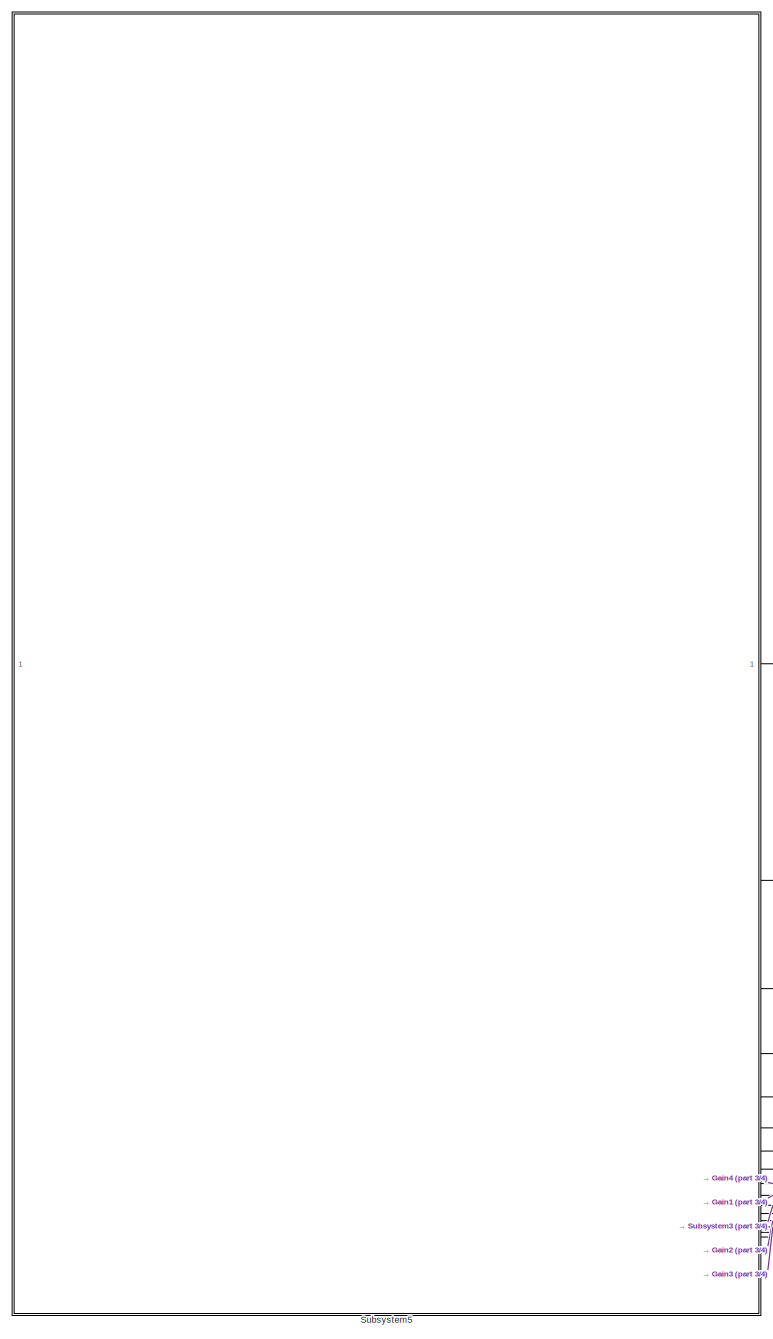
[diagram: root canvas - part 1/4, left side, full height]
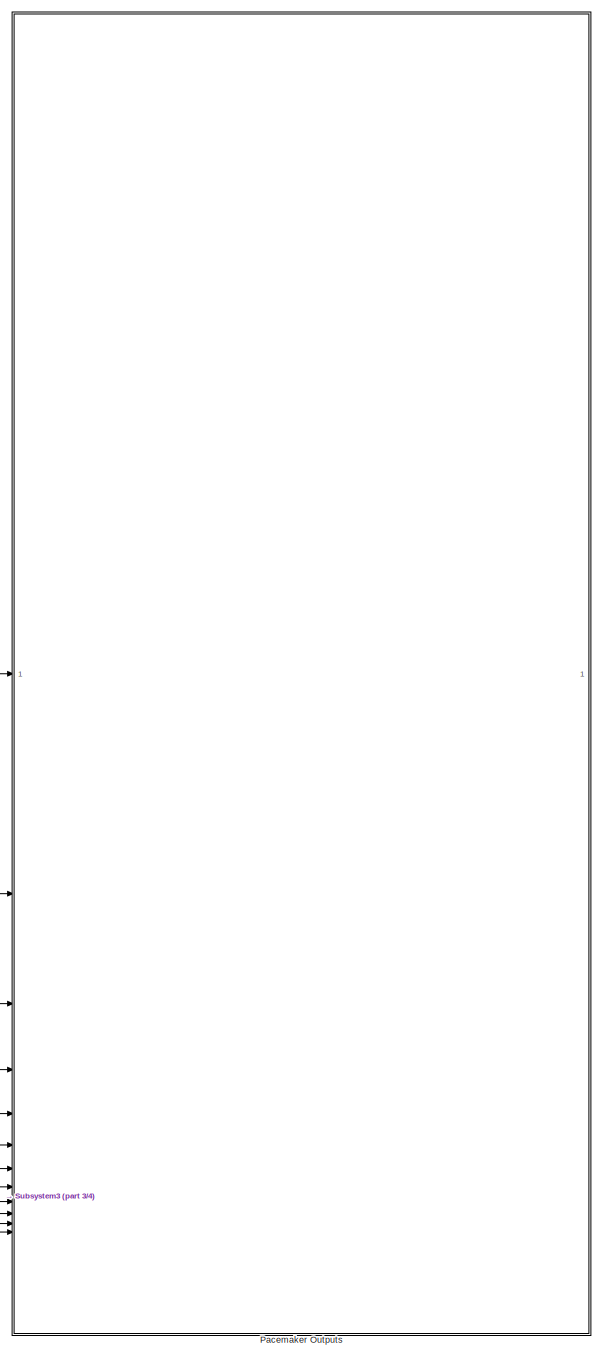
[diagram: root canvas - part 2/4, right side, full height]
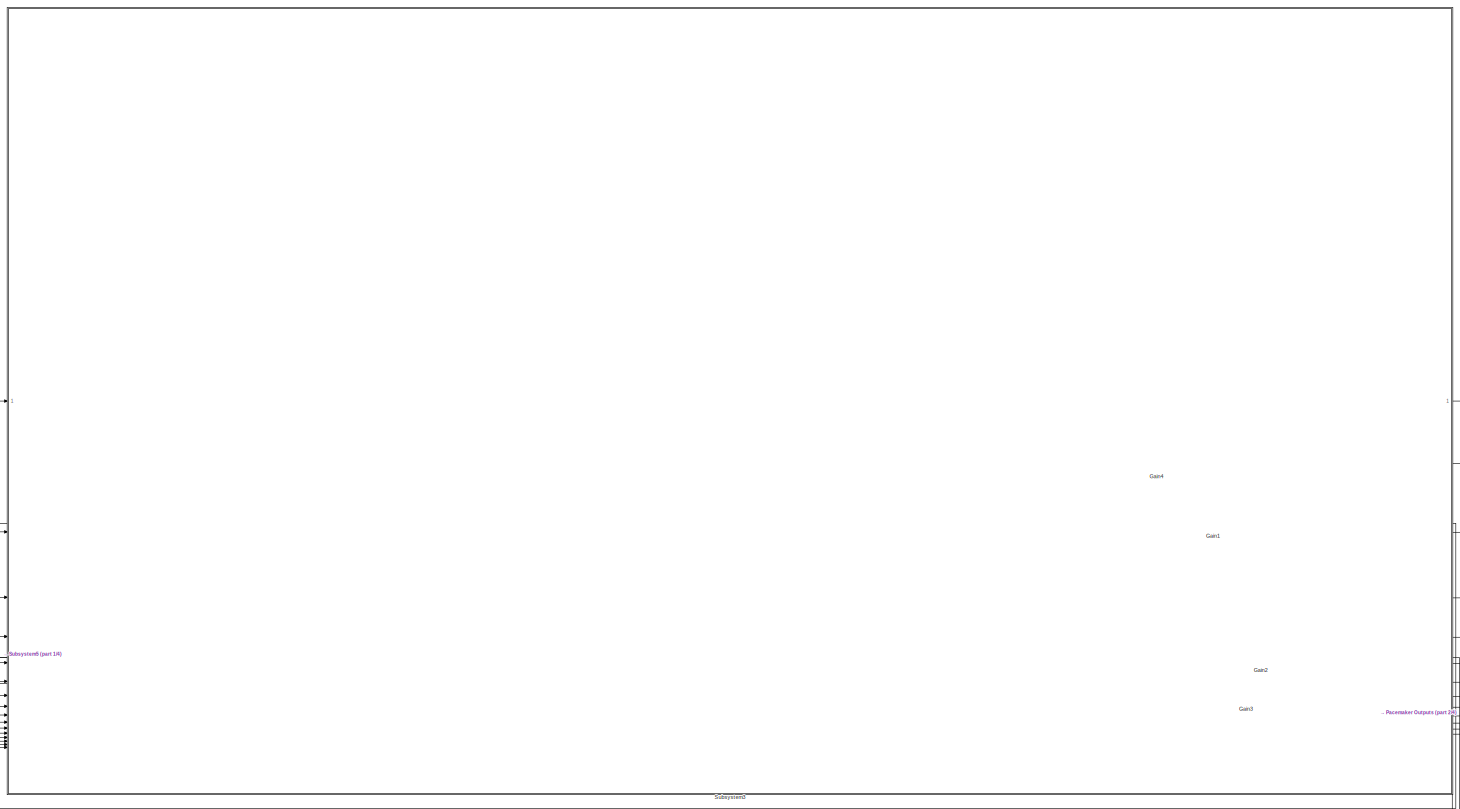
[diagram: root canvas - part 3/4, center side, full height]
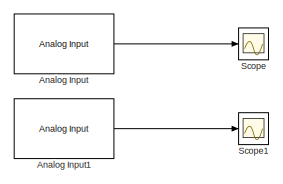
[diagram: root canvas - part 4/4, bottom left region]
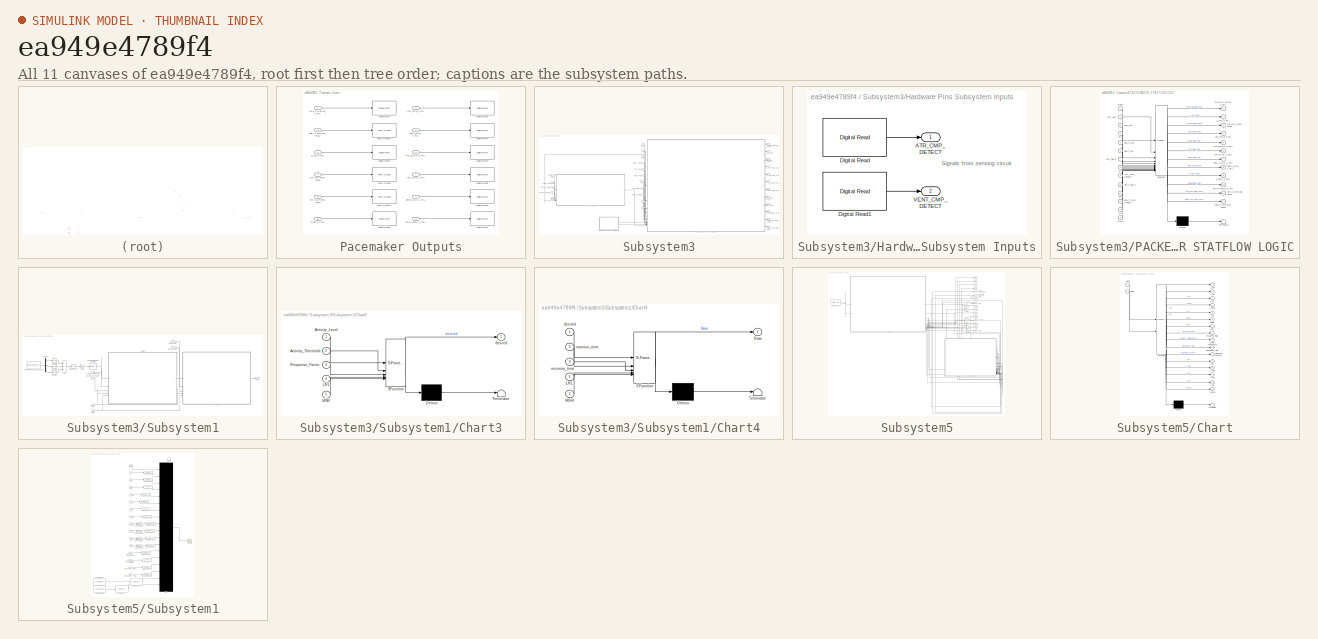
[diagram: thumbnail index - all 11 canvases of the model, root first then tree order]
MODEL slx_ea949e4789f4
KIND model
CONFIG AbsTol = auto
CONFIG EnableMultiTasking = on
CONFIG FixedStep = 1e-3
CONFIG MaxStep = auto
CONFIG MinStep = auto
CONFIG RelTol = 1e-3
CONFIG SampleTimeConstraint = Unconstrained
CONFIG SolverName = FixedStepAuto
CONFIG StartTime = 0.0
CONFIG StopTime = 10
BLOCK [Reference] Analog Input  REF=frdmk64flib/Analog Input
  SourceBlock = frdmk64flib/Analog Input
  SourceType = freedomk64f.AnalogInput
BLOCK [Reference] Analog Input1  REF=frdmk64flib/Analog Input
  SourceBlock = frdmk64flib/Analog Input
  SourceType = freedomk64f.AnalogInput
BLOCK [Gain] Gain1
  Gain = 20
BLOCK [Gain] Gain2
  Gain = 30
BLOCK [Gain] Gain3
  Gain = 30
BLOCK [Gain] Gain4
  Gain = 20
BLOCK [SubSystem] Pacemaker Outputs
BLOCK [Inport] Pacemaker Outputs/ATR_CMP_REF_PWM
  Port = 12
BLOCK [Inport] Pacemaker Outputs/ATR_GND_CTRL
  Port = 7
BLOCK [Inport] Pacemaker Outputs/ATR_PACE_CTRL
  Port = 4
BLOCK [Reference] Pacemaker Outputs/Digital Write  REF=frdmk64flib/Digital Write
  SourceBlock = frdmk64flib/Digital Write
  SourceType = freedomk64f.DigitalWrite
BLOCK [Reference] Pacemaker Outputs/Digital Write1  REF=frdmk64flib/Digital Write
  SourceBlock = frdmk64flib/Digital Write
  SourceType = freedomk64f.DigitalWrite
BLOCK [Reference] Pacemaker Outputs/Digital Write2  REF=frdmk64flib/Digital Write
  SourceBlock = frdmk64flib/Digital Write
  SourceType = freedomk64f.DigitalWrite
BLOCK [Reference] Pacemaker Outputs/Digital Write3  REF=frdmk64flib/Digital Write
  SourceBlock = frdmk64flib/Digital Write
  SourceType = freedomk64f.DigitalWrite
BLOCK [Reference] Pacemaker Outputs/Digital Write4  REF=frdmk64flib/Digital Write
  SourceBlock = frdmk64flib/Digital Write
  SourceType = freedomk64f.DigitalWrite
BLOCK [Reference] Pacemaker Outputs/Digital Write5  REF=frdmk64flib/Digital Write
  SourceBlock = frdmk64flib/Digital Write
  SourceType = freedomk64f.DigitalWrite
BLOCK [Reference] Pacemaker Outputs/Digital Write6  REF=frdmk64flib/Digital Write
  SourceBlock = frdmk64flib/Digital Write
  SourceType = freedomk64f.DigitalWrite
BLOCK [Reference] Pacemaker Outputs/Digital Write7  REF=frdmk64flib/Digital Write
  SourceBlock = frdmk64flib/Digital Write
  SourceType = freedomk64f.DigitalWrite
BLOCK [Reference] Pacemaker Outputs/Digital Write8  REF=frdmk64flib/Digital Write
  SourceBlock = frdmk64flib/Digital Write
  SourceType = freedomk64f.DigitalWrite
BLOCK [Inport] Pacemaker Outputs/FRONTEND_CTRL
  Port = 11
BLOCK [Inport] Pacemaker Outputs/PACE_CHARGE_CTRL
BLOCK [Inport] Pacemaker Outputs/PACE_GND_CTRL
  Port = 6
BLOCK [Inport] Pacemaker Outputs/PACING_REF_PWM
  Port = 3
BLOCK [Reference] Pacemaker Outputs/PWM Output  REF=frdmk64flib/PWM Output
  SourceBlock = frdmk64flib/PWM Output
  SourceType = freedomk64f.PWMOutput
BLOCK [Reference] Pacemaker Outputs/PWM Output1  REF=frdmk64flib/PWM Output
  SourceBlock = frdmk64flib/PWM Output
  SourceType = freedomk64f.PWMOutput
BLOCK [Reference] Pacemaker Outputs/PWM Output2  REF=frdmk64flib/PWM Output
  SourceBlock = frdmk64flib/PWM Output
  SourceType = freedomk64f.PWMOutput
BLOCK [Inport] Pacemaker Outputs/VENT_CMP_REF_PWM
  Port = 5
BLOCK [Inport] Pacemaker Outputs/VENT_GND_CTRL
  Port = 8
BLOCK [Inport] Pacemaker Outputs/VENT_PACE_CTRL
  Port = 9
BLOCK [Inport] Pacemaker Outputs/Z_ATR_CTRL
  Port = 2
BLOCK [Inport] Pacemaker Outputs/Z_VENT_CTRL
  Port = 10
BLOCK [Scope] Scope
  DataLoggingVariableName = ScopeData1
  Floating = off
  GraphicalSettings = {"GraphicalSettings":{"LegacySettings":true,"Style":{"Style":{"PlotType":"Auto"}}}}
  NumInputPorts = 1
  WasSavedAsWebScope = on
BLOCK [Scope] Scope1
  DataLoggingVariableName = ScopeData2
  Floating = off
  GraphicalSettings = {"GraphicalSettings":{"LegacySettings":true,"Style":{"Style":{"PlotType":"Auto"}}}}
  NumInputPorts = 1
  WasSavedAsWebScope = on
BLOCK [SubSystem] Subsystem3
BLOCK [Inport] Subsystem3/ARP
  Port = 15
BLOCK [Inport] Subsystem3/ATR_AMP
  Port = 9
BLOCK [Outport] Subsystem3/ATR_CMP_REF_PWM
  Port = 12
BLOCK [Outport] Subsystem3/ATR_GND_CTRL
  Port = 7
BLOCK [Outport] Subsystem3/ATR_PACE_CTRL
  Port = 4
BLOCK [Inport] Subsystem3/ATR_PW
  Port = 11
BLOCK [Inport] Subsystem3/ATR_SENS
  Port = 13
BLOCK [Inport] Subsystem3/Activity_Threshold
  Port = 5
BLOCK [Outport] Subsystem3/FRONTEND_CTRL
  Port = 11
BLOCK [SubSystem] Subsystem3/Hardware Pins Subsystem Inputs
BLOCK [Outport] Subsystem3/Hardware Pins Subsystem Inputs/ATR_CMP_DETECT
BLOCK [Reference] Subsystem3/Hardware Pins Subsystem Inputs/Digital Read  REF=frdmk64flib/Digital Read
  SourceBlock = frdmk64flib/Digital Read
  SourceType = freedomk64f.DigitalRead
BLOCK [Reference] Subsystem3/Hardware Pins Subsystem Inputs/Digital Read1  REF=frdmk64flib/Digital Read
  SourceBlock = frdmk64flib/Digital Read
  SourceType = freedomk64f.DigitalRead
BLOCK [Outport] Subsystem3/Hardware Pins Subsystem Inputs/VENT_CMP_DETECT
  Port = 2
BLOCK [Inport] Subsystem3/LRL
  Port = 2
BLOCK [Inport] Subsystem3/MSR
  Port = 4
BLOCK [Outport] Subsystem3/PACE_CHARGE_CTRL
BLOCK [Outport] Subsystem3/PACE_GND_CTRL
  Port = 6
BLOCK [Outport] Subsystem3/PACING_REF_PWM
  Port = 3
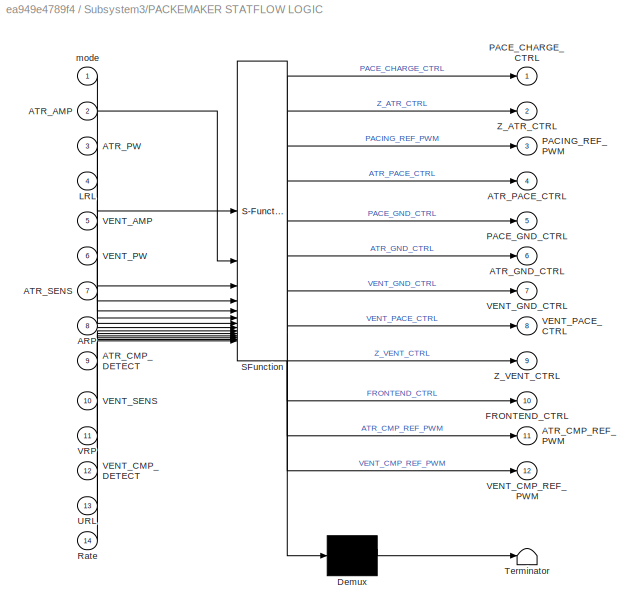
BLOCK [SubSystem] Subsystem3/PACKEMAKER STATFLOW LOGIC
  ErrorFcn = Stateflow.Translate.translate
  PermitHierarchicalResolution = ExplicitOnly
  PortSchema = {"entries":[{"content":{"sides":[{"content":{"connectorIds":["In1","In4","In13","In5","In2","In6","In3","In7","In10","In8","In11","In14","In9","In12"]},"type":"ConnectorPlacement.EquallySpacedRectSide","uuid":"2821f65a-9b3e-4ca7-babd-b0602bfdca31"},{"content":{"connectorIds":["Out1","Out2","Out3","Out4","Out5","Out6","Out7","Out8","Out9","Out10","Out11","Out12"],"side":"RIGHT"},"type":"ConnectorPl...<+385ch>
  SFBlockType = Chart
  TreatAsAtomicUnit = on
BLOCK [Demux] Subsystem3/PACKEMAKER STATFLOW LOGIC/ Demux 
  Outputs = 1
BLOCK [S-Function] Subsystem3/PACKEMAKER STATFLOW LOGIC/ SFunction 
  EnableBusSupport = off
  FunctionName = sf_sfun
  PortCounts = [14 13]
  SFcnIsStateOwnerBlock = off
  SFunctionDeploymentMode = off
  Tag = Stateflow S-Function 10
BLOCK [Terminator] Subsystem3/PACKEMAKER STATFLOW LOGIC/ Terminator 
BLOCK [Inport] Subsystem3/PACKEMAKER STATFLOW LOGIC/ARP
  Port = 8
BLOCK [Inport] Subsystem3/PACKEMAKER STATFLOW LOGIC/ATR_AMP
  Port = 2
BLOCK [Inport] Subsystem3/PACKEMAKER STATFLOW LOGIC/ATR_CMP_DETECT
  Port = 9
BLOCK [Outport] Subsystem3/PACKEMAKER STATFLOW LOGIC/ATR_CMP_REF_PWM
  Port = 11
BLOCK [Outport] Subsystem3/PACKEMAKER STATFLOW LOGIC/ATR_GND_CTRL
  Port = 6
BLOCK [Outport] Subsystem3/PACKEMAKER STATFLOW LOGIC/ATR_PACE_CTRL
  Port = 4
BLOCK [Inport] Subsystem3/PACKEMAKER STATFLOW LOGIC/ATR_PW
  Port = 3
BLOCK [Inport] Subsystem3/PACKEMAKER STATFLOW LOGIC/ATR_SENS
  Port = 7
BLOCK [Outport] Subsystem3/PACKEMAKER STATFLOW LOGIC/FRONTEND_CTRL
  Port = 10
BLOCK [Inport] Subsystem3/PACKEMAKER STATFLOW LOGIC/LRL
  Port = 4
BLOCK [Outport] Subsystem3/PACKEMAKER STATFLOW LOGIC/PACE_CHARGE_CTRL
BLOCK [Outport] Subsystem3/PACKEMAKER STATFLOW LOGIC/PACE_GND_CTRL
  Port = 5
BLOCK [Outport] Subsystem3/PACKEMAKER STATFLOW LOGIC/PACING_REF_PWM
  Port = 3
BLOCK [Inport] Subsystem3/PACKEMAKER STATFLOW LOGIC/Rate
  Port = 14
BLOCK [Inport] Subsystem3/PACKEMAKER STATFLOW LOGIC/URL
  Port = 13
BLOCK [Inport] Subsystem3/PACKEMAKER STATFLOW LOGIC/VENT_AMP
  Port = 5
BLOCK [Inport] Subsystem3/PACKEMAKER STATFLOW LOGIC/VENT_CMP_DETECT
  Port = 12
BLOCK [Outport] Subsystem3/PACKEMAKER STATFLOW LOGIC/VENT_CMP_REF_PWM
  Port = 12
BLOCK [Outport] Subsystem3/PACKEMAKER STATFLOW LOGIC/VENT_GND_CTRL
  Port = 7
BLOCK [Outport] Subsystem3/PACKEMAKER STATFLOW LOGIC/VENT_PACE_CTRL
  Port = 8
BLOCK [Inport] Subsystem3/PACKEMAKER STATFLOW LOGIC/VENT_PW
  Port = 6
BLOCK [Inport] Subsystem3/PACKEMAKER STATFLOW LOGIC/VENT_SENS
  Port = 10
BLOCK [Inport] Subsystem3/PACKEMAKER STATFLOW LOGIC/VRP
  Port = 11
BLOCK [Outport] Subsystem3/PACKEMAKER STATFLOW LOGIC/Z_ATR_CTRL
  Port = 2
BLOCK [Outport] Subsystem3/PACKEMAKER STATFLOW LOGIC/Z_VENT_CTRL
  Port = 9
BLOCK [Inport] Subsystem3/PACKEMAKER STATFLOW LOGIC/mode
BLOCK [Inport] Subsystem3/Response_Factor
  Port = 6
BLOCK [SubSystem] Subsystem3/Subsystem1
BLOCK [Inport] Subsystem3/Subsystem1/Activity_Threshold
  Port = 2
BLOCK [Sum] Subsystem3/Subsystem1/Add
  IconShape = rectangular
  Inputs = +++
BLOCK [SubSystem] Subsystem3/Subsystem1/Chart3
  ErrorFcn = Stateflow.Translate.translate
  PermitHierarchicalResolution = ExplicitOnly
  SFBlockType = Chart
  TreatAsAtomicUnit = on
BLOCK [Demux] Subsystem3/Subsystem1/Chart3/ Demux 
  Outputs = 1
BLOCK [S-Function] Subsystem3/Subsystem1/Chart3/ SFunction 
  EnableBusSupport = off
  FunctionName = sf_sfun
  PortCounts = [5 2]
  SFcnIsStateOwnerBlock = off
  SFunctionDeploymentMode = off
  Tag = Stateflow S-Function 11
BLOCK [Terminator] Subsystem3/Subsystem1/Chart3/ Terminator 
BLOCK [Inport] Subsystem3/Subsystem1/Chart3/Activity_Level
BLOCK [Inport] Subsystem3/Subsystem1/Chart3/Activity_Threshold
  Port = 2
BLOCK [Inport] Subsystem3/Subsystem1/Chart3/LRL
  Port = 4
BLOCK [Inport] Subsystem3/Subsystem1/Chart3/MSR
  Port = 5
BLOCK [Inport] Subsystem3/Subsystem1/Chart3/Response_Factor
  Port = 3
BLOCK [Outport] Subsystem3/Subsystem1/Chart3/desired
BLOCK [SubSystem] Subsystem3/Subsystem1/Chart4
  ErrorFcn = Stateflow.Translate.translate
  PermitHierarchicalResolution = ExplicitOnly
  PortSchema = {"entries":[{"content":{"sides":[{"content":{"connectorIds":["In2","In3","In1","In4","In5"]},"type":"ConnectorPlacement.EquallySpacedRectSide","uuid":"edd6887c-315a-49b4-96c6-4b9a398dbb27"},{"content":{"connectorIds":["Out1"],"side":"RIGHT"},"type":"ConnectorPlacement.EquallySpacedRectSide","uuid":"e866e153-969a-414b-b9d6-9523e8ffb3f5"},{"content":{"side":"TOP"},"type":"ConnectorPlacement.EquallyS...<+246ch>
  SFBlockType = Chart
  TreatAsAtomicUnit = on
BLOCK [Demux] Subsystem3/Subsystem1/Chart4/ Demux 
  Outputs = 1
BLOCK [S-Function] Subsystem3/Subsystem1/Chart4/ SFunction 
  EnableBusSupport = off
  FunctionName = sf_sfun
  PortCounts = [5 2]
  SFcnIsStateOwnerBlock = off
  SFunctionDeploymentMode = off
  Tag = Stateflow S-Function 12
BLOCK [Terminator] Subsystem3/Subsystem1/Chart4/ Terminator 
BLOCK [Inport] Subsystem3/Subsystem1/Chart4/LRL
  Port = 4
BLOCK [Inport] Subsystem3/Subsystem1/Chart4/MSR
  Port = 5
BLOCK [Outport] Subsystem3/Subsystem1/Chart4/Rate
BLOCK [Inport] Subsystem3/Subsystem1/Chart4/desired
BLOCK [Inport] Subsystem3/Subsystem1/Chart4/reaction_time
  Port = 2
BLOCK [Inport] Subsystem3/Subsystem1/Chart4/recovery_time
  Port = 3
BLOCK [Demux] Subsystem3/Subsystem1/Demux
  Outputs = 3
BLOCK [Reference] Subsystem3/Subsystem1/FXOS8700 6-Axes Sensor1  REF=frdmk64flib/FXOS8700 6-Axes Sensor
  SourceBlock = frdmk64flib/FXOS8700 6-Axes Sensor
  SourceType = freedomk64f.fxos8700
BLOCK [Gain] Subsystem3/Subsystem1/Gain
  Gain = 40
BLOCK [Inport] Subsystem3/Subsystem1/LRL
  Port = 6
BLOCK [Inport] Subsystem3/Subsystem1/MSR
  Port = 5
BLOCK [Reference] Subsystem3/Subsystem1/Moving Standard Deviation  REF=dspstat3/Moving
Standard
Deviation
  SourceBlock = dspstat3/Moving\nStandard\nDeviation
  SourceType = dsp.simulink.MovingStandardDeviation
BLOCK [Outport] Subsystem3/Subsystem1/Rate
BLOCK [Inport] Subsystem3/Subsystem1/Response_Factor
  Port = 4
BLOCK [Math] Subsystem3/Subsystem1/Square
  Operator = square
BLOCK [Sqrt] Subsystem3/Subsystem1/Square Root
BLOCK [Math] Subsystem3/Subsystem1/Square1
  Operator = square
BLOCK [Math] Subsystem3/Subsystem1/Square2
  Operator = square
BLOCK [Inport] Subsystem3/Subsystem1/reaction_time
BLOCK [Inport] Subsystem3/Subsystem1/recovery_time
  Port = 3
BLOCK [Inport] Subsystem3/URL
  Port = 3
BLOCK [Inport] Subsystem3/VENT_AMP
  Port = 10
BLOCK [Outport] Subsystem3/VENT_CMP_REF_PWM
  Port = 5
BLOCK [Outport] Subsystem3/VENT_GND_CTRL
  Port = 8
BLOCK [Outport] Subsystem3/VENT_PACE_CTRL
  Port = 9
BLOCK [Inport] Subsystem3/VENT_PW
  Port = 12
BLOCK [Inport] Subsystem3/VENT_SENS
  Port = 14
BLOCK [Inport] Subsystem3/VRP
  Port = 16
BLOCK [Outport] Subsystem3/Z_ATR_CTRL
  Port = 2
BLOCK [Outport] Subsystem3/Z_VENT_CTRL
  Port = 10
BLOCK [Inport] Subsystem3/mode
BLOCK [Inport] Subsystem3/reaction_time
  Port = 7
BLOCK [Inport] Subsystem3/recovery_time
  Port = 8
BLOCK [SubSystem] Subsystem5
BLOCK [Outport] Subsystem5/ACTIVITY_THRESHOLD
  Port = 5
BLOCK [Outport] Subsystem5/A_AMP
  Port = 9
BLOCK [Outport] Subsystem5/A_PW
  Port = 11
BLOCK [Outport] Subsystem5/A_RP
  Port = 15
BLOCK [Outport] Subsystem5/A_SENS
  Port = 13
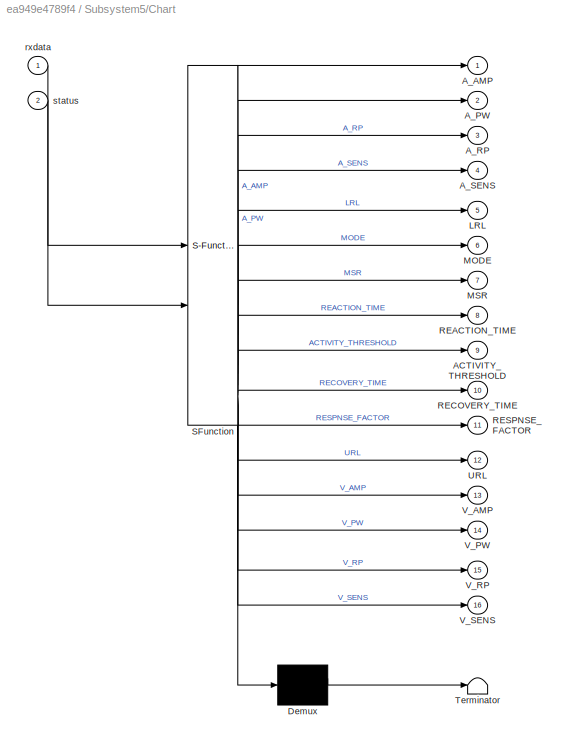
BLOCK [SubSystem] Subsystem5/Chart
  ErrorFcn = Stateflow.Translate.translate
  PermitHierarchicalResolution = ExplicitOnly
  PortSchema = {"entries":[{"content":{"sides":[{"content":{"connectorIds":["In1","In2"]},"type":"ConnectorPlacement.EquallySpacedRectSide","uuid":"7451ee94-9b00-43e8-b3be-cdc332c766dc"},{"content":{"connectorIds":["Out6","Out5","Out12","Out7","Out9","Out11","Out8","Out10","Out1","Out13","Out2","Out14","Out4","Out16","Out3","Out15"],"side":"RIGHT"},"type":"ConnectorPlacement.EquallySpacedRectSide","uuid":"f2d3f7...<+340ch>
  SFBlockType = Chart
  TreatAsAtomicUnit = on
BLOCK [Demux] Subsystem5/Chart/ Demux 
  Outputs = 1
BLOCK [S-Function] Subsystem5/Chart/ SFunction 
  EnableBusSupport = off
  FunctionName = sf_sfun
  PortCounts = [2 17]
  SFcnIsStateOwnerBlock = off
  SFunctionDeploymentMode = off
  Tag = Stateflow S-Function 13
BLOCK [Terminator] Subsystem5/Chart/ Terminator 
BLOCK [Outport] Subsystem5/Chart/ACTIVITY_THRESHOLD
  Port = 9
BLOCK [Outport] Subsystem5/Chart/A_AMP
BLOCK [Outport] Subsystem5/Chart/A_PW
  Port = 2
BLOCK [Outport] Subsystem5/Chart/A_RP
  Port = 3
BLOCK [Outport] Subsystem5/Chart/A_SENS
  Port = 4
BLOCK [Outport] Subsystem5/Chart/LRL
  Port = 5
BLOCK [Outport] Subsystem5/Chart/MODE
  Port = 6
BLOCK [Outport] Subsystem5/Chart/MSR
  Port = 7
BLOCK [Outport] Subsystem5/Chart/REACTION_TIME
  Port = 8
BLOCK [Outport] Subsystem5/Chart/RECOVERY_TIME
  Port = 10
BLOCK [Outport] Subsystem5/Chart/RESPNSE_FACTOR
  Port = 11
BLOCK [Outport] Subsystem5/Chart/URL
  Port = 12
BLOCK [Outport] Subsystem5/Chart/V_AMP
  Port = 13
BLOCK [Outport] Subsystem5/Chart/V_PW
  Port = 14
BLOCK [Outport] Subsystem5/Chart/V_RP
  Port = 15
BLOCK [Outport] Subsystem5/Chart/V_SENS
  Port = 16
BLOCK [Inport] Subsystem5/Chart/rxdata
BLOCK [Inport] Subsystem5/Chart/status
  Port = 2
BLOCK [Gain] Subsystem5/Gain
  Gain = 1/10
BLOCK [Gain] Subsystem5/Gain1
  Gain = 1/10
BLOCK [Gain] Subsystem5/Gain4
  Gain = 1/10
BLOCK [Gain] Subsystem5/Gain5
  Gain = 1/10
BLOCK [Gain] Subsystem5/Gain6
  Gain = 10
BLOCK [Gain] Subsystem5/Gain7
  Gain = 10
BLOCK [Outport] Subsystem5/LRL
  Port = 2
BLOCK [Outport] Subsystem5/MODE
BLOCK [Outport] Subsystem5/MSR
  Port = 4
BLOCK [Outport] Subsystem5/REACTION_TIME
  Port = 7
BLOCK [Outport] Subsystem5/RECOVERY_TIME
  Port = 8
BLOCK [Outport] Subsystem5/RESPNSE_FACTOR
  Port = 6
BLOCK [Reference] Subsystem5/Serial Receive  REF=frdmk64flib/Serial Receive
  SourceBlock = frdmk64flib/Serial Receive
  SourceType = freedomk64f.SCIRead
BLOCK [SubSystem] Subsystem5/Subsystem1
  NameLocation = top
BLOCK [Inport] Subsystem5/Subsystem1/ACTIVITY_THRESHOLD
  Port = 13
BLOCK [Inport] Subsystem5/Subsystem1/A_AMP
  Port = 5
BLOCK [Inport] Subsystem5/Subsystem1/A_PW
  Port = 7
BLOCK [Inport] Subsystem5/Subsystem1/A_RP
  Port = 11
BLOCK [Inport] Subsystem5/Subsystem1/A_SENS
  Port = 9
BLOCK [Reference] Subsystem5/Subsystem1/Analog Input  REF=frdmk64flib/Analog Input
  SourceBlock = frdmk64flib/Analog Input
  SourceType = freedomk64f.AnalogInput
BLOCK [Reference] Subsystem5/Subsystem1/Analog Input1  REF=frdmk64flib/Analog Input
  SourceBlock = frdmk64flib/Analog Input
  SourceType = freedomk64f.AnalogInput
BLOCK [Reference] Subsystem5/Subsystem1/Byte Pack  REF=etargetslib/Byte Pack
  SourceBlock = etargetslib/Byte Pack
  SourceType = Byte pack
BLOCK [Reference] Subsystem5/Subsystem1/Byte Pack1  REF=etargetslib/Byte Pack
  SourceBlock = etargetslib/Byte Pack
  SourceType = Byte pack
BLOCK [Reference] Subsystem5/Subsystem1/Byte Pack19  REF=etargetslib/Byte Pack
  SourceBlock = etargetslib/Byte Pack
  SourceType = Byte pack
BLOCK [Reference] Subsystem5/Subsystem1/Byte Pack20  REF=etargetslib/Byte Pack
  SourceBlock = etargetslib/Byte Pack
  SourceType = Byte pack
BLOCK [Reference] Subsystem5/Subsystem1/Byte Pack21  REF=etargetslib/Byte Pack
  SourceBlock = etargetslib/Byte Pack
  SourceType = Byte pack
BLOCK [Reference] Subsystem5/Subsystem1/Byte Pack22  REF=etargetslib/Byte Pack
  SourceBlock = etargetslib/Byte Pack
  SourceType = Byte pack
BLOCK [Reference] Subsystem5/Subsystem1/Byte Pack23  REF=etargetslib/Byte Pack
  SourceBlock = etargetslib/Byte Pack
  SourceType = Byte pack
BLOCK [Reference] Subsystem5/Subsystem1/Byte Pack24  REF=etargetslib/Byte Pack
  SourceBlock = etargetslib/Byte Pack
  SourceType = Byte pack
BLOCK [Reference] Subsystem5/Subsystem1/Byte Pack25  REF=etargetslib/Byte Pack
  SourceBlock = etargetslib/Byte Pack
  SourceType = Byte pack
BLOCK [Reference] Subsystem5/Subsystem1/Byte Pack26  REF=etargetslib/Byte Pack
  SourceBlock = etargetslib/Byte Pack
  SourceType = Byte pack
BLOCK [Reference] Subsystem5/Subsystem1/Byte Pack27  REF=etargetslib/Byte Pack
  SourceBlock = etargetslib/Byte Pack
  SourceType = Byte pack
BLOCK [Reference] Subsystem5/Subsystem1/Byte Pack28  REF=etargetslib/Byte Pack
  SourceBlock = etargetslib/Byte Pack
  SourceType = Byte pack
BLOCK [Reference] Subsystem5/Subsystem1/Byte Pack29  REF=etargetslib/Byte Pack
  SourceBlock = etargetslib/Byte Pack
  SourceType = Byte pack
BLOCK [Reference] Subsystem5/Subsystem1/Byte Pack30  REF=etargetslib/Byte Pack
  SourceBlock = etargetslib/Byte Pack
  SourceType = Byte pack
BLOCK [Reference] Subsystem5/Subsystem1/Byte Pack31  REF=etargetslib/Byte Pack
  SourceBlock = etargetslib/Byte Pack
  SourceType = Byte pack
BLOCK [Reference] Subsystem5/Subsystem1/Byte Pack32  REF=etargetslib/Byte Pack
  SourceBlock = etargetslib/Byte Pack
  SourceType = Byte pack
BLOCK [Reference] Subsystem5/Subsystem1/Byte Pack33  REF=etargetslib/Byte Pack
  SourceBlock = etargetslib/Byte Pack
  SourceType = Byte pack
BLOCK [DataTypeConversion] Subsystem5/Subsystem1/Data Type Conversion5
  OutDataTypeStr = double
  RndMeth = Floor
  SaturateOnIntegerOverflow = off
BLOCK [DataTypeConversion] Subsystem5/Subsystem1/Data Type Conversion6
  OutDataTypeStr = double
  RndMeth = Floor
  SaturateOnIntegerOverflow = off
BLOCK [DataTypeConversion] Subsystem5/Subsystem1/Data Type Conversion7
  OutDataTypeStr = double
  RndMeth = Floor
  SaturateOnIntegerOverflow = off
BLOCK [DataTypeConversion] Subsystem5/Subsystem1/Data Type Conversion8
  OutDataTypeStr = double
  RndMeth = Floor
  SaturateOnIntegerOverflow = off
BLOCK [Inport] Subsystem5/Subsystem1/LRL
  Port = 2
BLOCK [Inport] Subsystem5/Subsystem1/MSR
  Port = 4
BLOCK [Inport] Subsystem5/Subsystem1/Mode
BLOCK [Mux] Subsystem5/Subsystem1/Mux
  DisplayOption = bar
  Inputs = 18
BLOCK [Inport] Subsystem5/Subsystem1/REACTION_TIME
  Port = 15
BLOCK [Inport] Subsystem5/Subsystem1/RECOVERY_TIME
  Port = 16
BLOCK [Inport] Subsystem5/Subsystem1/RESPONSE_FACTOR
  Port = 14
BLOCK [TriggerPort] Subsystem5/Subsystem1/SEND
  FunctionName = SEND_PARAM
  IsSimulinkFunction = on
  StatesWhenEnabling = held
  TriggerType = function-call
  VariantControl = (inherit)
BLOCK [Scope] Subsystem5/Subsystem1/Scope
  Floating = off
  GraphicalSettings = {"GraphicalSettings":{"LegacySettings":true,"Style":{"Style":{"PlotType":"Auto"}}}}
  NumInputPorts = 1
  WasSavedAsWebScope = on
BLOCK [Inport] Subsystem5/Subsystem1/URL
  Port = 3
BLOCK [Inport] Subsystem5/Subsystem1/V_AMP
  Port = 6
BLOCK [Inport] Subsystem5/Subsystem1/V_PW
  Port = 8
BLOCK [Inport] Subsystem5/Subsystem1/V_RP
  Port = 12
BLOCK [Inport] Subsystem5/Subsystem1/V_SENS
  Port = 10
BLOCK [Outport] Subsystem5/URL
  Port = 3
BLOCK [Outport] Subsystem5/V_AMP
  Port = 10
BLOCK [Outport] Subsystem5/V_PW
  Port = 12
BLOCK [Outport] Subsystem5/V_RP
  Port = 16
BLOCK [Outport] Subsystem5/V_SENS
  Port = 14
ANNOTATION Subsystem3/Hardware Pins Subsystem Inputs: Signals from sensing circuit
LINE Analog Input1:1 -> Scope1:1
LINE Analog Input:1 -> Scope:1
LINE Gain1:1 -> Subsystem3:10
LINE Gain2:1 -> Subsystem3:13
LINE Gain3:1 -> Subsystem3:14
LINE Gain4:1 -> Subsystem3:9
LINE Pacemaker Outputs/ATR_CMP_REF_PWM:1 -> Pacemaker Outputs/PWM Output1:1
LINE Pacemaker Outputs/ATR_GND_CTRL:1 -> Pacemaker Outputs/Digital Write5:1
LINE Pacemaker Outputs/ATR_PACE_CTRL:1 -> Pacemaker Outputs/Digital Write3:1
LINE Pacemaker Outputs/FRONTEND_CTRL:1 -> Pacemaker Outputs/Digital Write2:1
LINE Pacemaker Outputs/PACE_CHARGE_CTRL:1 -> Pacemaker Outputs/Digital Write:1
LINE Pacemaker Outputs/PACE_GND_CTRL:1 -> Pacemaker Outputs/Digital Write4:1
LINE Pacemaker Outputs/PACING_REF_PWM:1 -> Pacemaker Outputs/PWM Output:1
LINE Pacemaker Outputs/VENT_CMP_REF_PWM:1 -> Pacemaker Outputs/PWM Output2:1
LINE Pacemaker Outputs/VENT_GND_CTRL:1 -> Pacemaker Outputs/Digital Write6:1
LINE Pacemaker Outputs/VENT_PACE_CTRL:1 -> Pacemaker Outputs/Digital Write7:1
LINE Pacemaker Outputs/Z_ATR_CTRL:1 -> Pacemaker Outputs/Digital Write1:1
LINE Pacemaker Outputs/Z_VENT_CTRL:1 -> Pacemaker Outputs/Digital Write8:1
LINE Subsystem3/ARP:1 -> Subsystem3/PACKEMAKER STATFLOW LOGIC:8
LINE Subsystem3/ATR_AMP:1 -> Subsystem3/PACKEMAKER STATFLOW LOGIC:2
LINE Subsystem3/ATR_PW:1 -> Subsystem3/PACKEMAKER STATFLOW LOGIC:3
LINE Subsystem3/ATR_SENS:1 -> Subsystem3/PACKEMAKER STATFLOW LOGIC:7
LINE Subsystem3/Activity_Threshold:1 -> Subsystem3/Subsystem1:2
LINE Subsystem3/Hardware Pins Subsystem Inputs/Digital Read1:1 -> Subsystem3/Hardware Pins Subsystem Inputs/VENT_CMP_DETECT:1
LINE Subsystem3/Hardware Pins Subsystem Inputs/Digital Read:1 -> Subsystem3/Hardware Pins Subsystem Inputs/ATR_CMP_DETECT:1
LINE Subsystem3/Hardware Pins Subsystem Inputs:1 -> Subsystem3/PACKEMAKER STATFLOW LOGIC:9
LINE Subsystem3/Hardware Pins Subsystem Inputs:2 -> Subsystem3/PACKEMAKER STATFLOW LOGIC:12
NET Subsystem3/LRL:1 -> Subsystem3/PACKEMAKER STATFLOW LOGIC:4, Subsystem3/Subsystem1:6
LINE Subsystem3/MSR:1 -> Subsystem3/Subsystem1:5
LINE Subsystem3/PACKEMAKER STATFLOW LOGIC:1 -> Subsystem3/PACE_CHARGE_CTRL:1
LINE Subsystem3/PACKEMAKER STATFLOW LOGIC:10 -> Subsystem3/FRONTEND_CTRL:1
LINE Subsystem3/PACKEMAKER STATFLOW LOGIC:11 -> Subsystem3/ATR_CMP_REF_PWM:1
LINE Subsystem3/PACKEMAKER STATFLOW LOGIC:12 -> Subsystem3/VENT_CMP_REF_PWM:1
LINE Subsystem3/PACKEMAKER STATFLOW LOGIC:2 -> Subsystem3/Z_ATR_CTRL:1
LINE Subsystem3/PACKEMAKER STATFLOW LOGIC:3 -> Subsystem3/PACING_REF_PWM:1
LINE Subsystem3/PACKEMAKER STATFLOW LOGIC:4 -> Subsystem3/ATR_PACE_CTRL:1
LINE Subsystem3/PACKEMAKER STATFLOW LOGIC:5 -> Subsystem3/PACE_GND_CTRL:1
LINE Subsystem3/PACKEMAKER STATFLOW LOGIC:6 -> Subsystem3/ATR_GND_CTRL:1
LINE Subsystem3/PACKEMAKER STATFLOW LOGIC:7 -> Subsystem3/VENT_GND_CTRL:1
LINE Subsystem3/PACKEMAKER STATFLOW LOGIC:8 -> Subsystem3/VENT_PACE_CTRL:1
LINE Subsystem3/PACKEMAKER STATFLOW LOGIC:9 -> Subsystem3/Z_VENT_CTRL:1
LINE Subsystem3/Response_Factor:1 -> Subsystem3/Subsystem1:4
LINE Subsystem3/Subsystem1/Activity_Threshold:1 -> Subsystem3/Subsystem1/Chart3:2
LINE Subsystem3/Subsystem1/Add:1 -> Subsystem3/Subsystem1/Square Root:1
LINE Subsystem3/Subsystem1/Chart3:1 -> Subsystem3/Subsystem1/Chart4:1
LINE Subsystem3/Subsystem1/Chart4:1 -> Subsystem3/Subsystem1/Rate:1
LINE Subsystem3/Subsystem1/Demux:1 -> Subsystem3/Subsystem1/Square:1
LINE Subsystem3/Subsystem1/Demux:2 -> Subsystem3/Subsystem1/Square1:1
LINE Subsystem3/Subsystem1/Demux:3 -> Subsystem3/Subsystem1/Square2:1
LINE Subsystem3/Subsystem1/FXOS8700 6-Axes Sensor1:1 -> Subsystem3/Subsystem1/Demux:1
LINE Subsystem3/Subsystem1/Gain:1 -> Subsystem3/Subsystem1/Moving Standard Deviation:1
NET Subsystem3/Subsystem1/LRL:1 -> Subsystem3/Subsystem1/Chart3:4, Subsystem3/Subsystem1/Chart4:4
NET Subsystem3/Subsystem1/MSR:1 -> Subsystem3/Subsystem1/Chart3:5, Subsystem3/Subsystem1/Chart4:5
LINE Subsystem3/Subsystem1/Moving Standard Deviation:1 -> Subsystem3/Subsystem1/Chart3:1
LINE Subsystem3/Subsystem1/Response_Factor:1 -> Subsystem3/Subsystem1/Chart3:3
LINE Subsystem3/Subsystem1/Square Root:1 -> Subsystem3/Subsystem1/Gain:1
LINE Subsystem3/Subsystem1/Square1:1 -> Subsystem3/Subsystem1/Add:2
LINE Subsystem3/Subsystem1/Square2:1 -> Subsystem3/Subsystem1/Add:3
LINE Subsystem3/Subsystem1/Square:1 -> Subsystem3/Subsystem1/Add:1
LINE Subsystem3/Subsystem1/reaction_time:1 -> Subsystem3/Subsystem1/Chart4:2
LINE Subsystem3/Subsystem1/recovery_time:1 -> Subsystem3/Subsystem1/Chart4:3
LINE Subsystem3/Subsystem1:1 -> Subsystem3/PACKEMAKER STATFLOW LOGIC:14
LINE Subsystem3/URL:1 -> Subsystem3/PACKEMAKER STATFLOW LOGIC:13
LINE Subsystem3/VENT_AMP:1 -> Subsystem3/PACKEMAKER STATFLOW LOGIC:5
LINE Subsystem3/VENT_PW:1 -> Subsystem3/PACKEMAKER STATFLOW LOGIC:6
LINE Subsystem3/VENT_SENS:1 -> Subsystem3/PACKEMAKER STATFLOW LOGIC:10
LINE Subsystem3/VRP:1 -> Subsystem3/PACKEMAKER STATFLOW LOGIC:11
LINE Subsystem3/mode:1 -> Subsystem3/PACKEMAKER STATFLOW LOGIC:1
LINE Subsystem3/reaction_time:1 -> Subsystem3/Subsystem1:1
LINE Subsystem3/recovery_time:1 -> Subsystem3/Subsystem1:3
LINE Subsystem3:1 -> Pacemaker Outputs:1
LINE Subsystem3:10 -> Pacemaker Outputs:10
LINE Subsystem3:11 -> Pacemaker Outputs:11
LINE Subsystem3:12 -> Pacemaker Outputs:12
LINE Subsystem3:2 -> Pacemaker Outputs:2
LINE Subsystem3:3 -> Pacemaker Outputs:3
LINE Subsystem3:4 -> Pacemaker Outputs:4
LINE Subsystem3:5 -> Pacemaker Outputs:5
LINE Subsystem3:6 -> Pacemaker Outputs:6
LINE Subsystem3:7 -> Pacemaker Outputs:7
LINE Subsystem3:8 -> Pacemaker Outputs:8
LINE Subsystem3:9 -> Pacemaker Outputs:9
NET Subsystem5/Chart:1 -> Subsystem5/Gain:1, Subsystem5/Subsystem1:5
NET Subsystem5/Chart:10 -> Subsystem5/RECOVERY_TIME:1, Subsystem5/Subsystem1:16
NET Subsystem5/Chart:11 -> Subsystem5/RESPNSE_FACTOR:1, Subsystem5/Subsystem1:14
NET Subsystem5/Chart:12 -> Subsystem5/Subsystem1:3, Subsystem5/URL:1
NET Subsystem5/Chart:13 -> Subsystem5/Gain1:1, Subsystem5/Subsystem1:6
NET Subsystem5/Chart:14 -> Subsystem5/Subsystem1:8, Subsystem5/V_PW:1
NET Subsystem5/Chart:15 -> Subsystem5/Gain7:1, Subsystem5/Subsystem1:12
NET Subsystem5/Chart:16 -> Subsystem5/Gain5:1, Subsystem5/Subsystem1:10
NET Subsystem5/Chart:2 -> Subsystem5/A_PW:1, Subsystem5/Subsystem1:7
NET Subsystem5/Chart:3 -> Subsystem5/Gain6:1, Subsystem5/Subsystem1:11
NET Subsystem5/Chart:4 -> Subsystem5/Gain4:1, Subsystem5/Subsystem1:9
NET Subsystem5/Chart:5 -> Subsystem5/LRL:1, Subsystem5/Subsystem1:2
NET Subsystem5/Chart:6 -> Subsystem5/MODE:1, Subsystem5/Subsystem1:1
NET Subsystem5/Chart:7 -> Subsystem5/MSR:1, Subsystem5/Subsystem1:4
NET Subsystem5/Chart:8 -> Subsystem5/REACTION_TIME:1, Subsystem5/Subsystem1:15
NET Subsystem5/Chart:9 -> Subsystem5/ACTIVITY_THRESHOLD:1, Subsystem5/Subsystem1:13
LINE Subsystem5/Gain1:1 -> Subsystem5/V_AMP:1
LINE Subsystem5/Gain4:1 -> Subsystem5/A_SENS:1
LINE Subsystem5/Gain5:1 -> Subsystem5/V_SENS:1
LINE Subsystem5/Gain6:1 -> Subsystem5/A_RP:1
LINE Subsystem5/Gain7:1 -> Subsystem5/V_RP:1
LINE Subsystem5/Gain:1 -> Subsystem5/A_AMP:1
LINE Subsystem5/Serial Receive:1 -> Subsystem5/Chart:1
LINE Subsystem5/Serial Receive:2 -> Subsystem5/Chart:2
LINE Subsystem5/Subsystem1/ACTIVITY_THRESHOLD:1 -> Subsystem5/Subsystem1/Byte Pack30:1
LINE Subsystem5/Subsystem1/A_AMP:1 -> Subsystem5/Subsystem1/Byte Pack22:1
LINE Subsystem5/Subsystem1/A_PW:1 -> Subsystem5/Subsystem1/Byte Pack24:1
LINE Subsystem5/Subsystem1/A_RP:1 -> Subsystem5/Subsystem1/Data Type Conversion7:1
LINE Subsystem5/Subsystem1/A_SENS:1 -> Subsystem5/Subsystem1/Data Type Conversion5:1
LINE Subsystem5/Subsystem1/Analog Input1:1 -> Subsystem5/Subsystem1/Byte Pack:1
LINE Subsystem5/Subsystem1/Analog Input:1 -> Subsystem5/Subsystem1/Byte Pack1:1
LINE Subsystem5/Subsystem1/Byte Pack19:1 -> Subsystem5/Subsystem1/Mux:2
LINE Subsystem5/Subsystem1/Byte Pack1:1 -> Subsystem5/Subsystem1/Mux:17
LINE Subsystem5/Subsystem1/Byte Pack20:1 -> Subsystem5/Subsystem1/Mux:3
LINE Subsystem5/Subsystem1/Byte Pack21:1 -> Subsystem5/Subsystem1/Mux:4
LINE Subsystem5/Subsystem1/Byte Pack22:1 -> Subsystem5/Subsystem1/Mux:5
LINE Subsystem5/Subsystem1/Byte Pack23:1 -> Subsystem5/Subsystem1/Mux:6
LINE Subsystem5/Subsystem1/Byte Pack24:1 -> Subsystem5/Subsystem1/Mux:7
LINE Subsystem5/Subsystem1/Byte Pack25:1 -> Subsystem5/Subsystem1/Mux:8
LINE Subsystem5/Subsystem1/Byte Pack26:1 -> Subsystem5/Subsystem1/Mux:9
LINE Subsystem5/Subsystem1/Byte Pack27:1 -> Subsystem5/Subsystem1/Mux:10
LINE Subsystem5/Subsystem1/Byte Pack28:1 -> Subsystem5/Subsystem1/Mux:11
LINE Subsystem5/Subsystem1/Byte Pack29:1 -> Subsystem5/Subsystem1/Mux:12
LINE Subsystem5/Subsystem1/Byte Pack30:1 -> Subsystem5/Subsystem1/Mux:13
LINE Subsystem5/Subsystem1/Byte Pack31:1 -> Subsystem5/Subsystem1/Mux:14
LINE Subsystem5/Subsystem1/Byte Pack32:1 -> Subsystem5/Subsystem1/Mux:15
LINE Subsystem5/Subsystem1/Byte Pack33:1 -> Subsystem5/Subsystem1/Mux:16
LINE Subsystem5/Subsystem1/Byte Pack:1 -> Subsystem5/Subsystem1/Mux:18
LINE Subsystem5/Subsystem1/Data Type Conversion5:1 -> Subsystem5/Subsystem1/Byte Pack26:1
LINE Subsystem5/Subsystem1/Data Type Conversion6:1 -> Subsystem5/Subsystem1/Byte Pack27:1
LINE Subsystem5/Subsystem1/Data Type Conversion7:1 -> Subsystem5/Subsystem1/Byte Pack28:1
LINE Subsystem5/Subsystem1/Data Type Conversion8:1 -> Subsystem5/Subsystem1/Byte Pack29:1
LINE Subsystem5/Subsystem1/LRL:1 -> Subsystem5/Subsystem1/Byte Pack19:1
LINE Subsystem5/Subsystem1/MSR:1 -> Subsystem5/Subsystem1/Byte Pack21:1
LINE Subsystem5/Subsystem1/Mode:1 -> Subsystem5/Subsystem1/Mux:1
LINE Subsystem5/Subsystem1/Mux:1 -> Subsystem5/Subsystem1/Scope:1
LINE Subsystem5/Subsystem1/REACTION_TIME:1 -> Subsystem5/Subsystem1/Byte Pack32:1
LINE Subsystem5/Subsystem1/RECOVERY_TIME:1 -> Subsystem5/Subsystem1/Byte Pack33:1
LINE Subsystem5/Subsystem1/RESPONSE_FACTOR:1 -> Subsystem5/Subsystem1/Byte Pack31:1
LINE Subsystem5/Subsystem1/URL:1 -> Subsystem5/Subsystem1/Byte Pack20:1
LINE Subsystem5/Subsystem1/V_AMP:1 -> Subsystem5/Subsystem1/Byte Pack23:1
LINE Subsystem5/Subsystem1/V_PW:1 -> Subsystem5/Subsystem1/Byte Pack25:1
LINE Subsystem5/Subsystem1/V_RP:1 -> Subsystem5/Subsystem1/Data Type Conversion8:1
LINE Subsystem5/Subsystem1/V_SENS:1 -> Subsystem5/Subsystem1/Data Type Conversion6:1
LINE Subsystem5:1 -> Subsystem3:1
LINE Subsystem5:10 -> Gain1:1
LINE Subsystem5:11 -> Subsystem3:11
LINE Subsystem5:12 -> Subsystem3:12
LINE Subsystem5:13 -> Gain2:1
LINE Subsystem5:14 -> Gain3:1
LINE Subsystem5:15 -> Subsystem3:15
LINE Subsystem5:16 -> Subsystem3:16
LINE Subsystem5:2 -> Subsystem3:2
LINE Subsystem5:3 -> Subsystem3:3
LINE Subsystem5:4 -> Subsystem3:4
LINE Subsystem5:5 -> Subsystem3:5
LINE Subsystem5:6 -> Subsystem3:6
LINE Subsystem5:7 -> Subsystem3:7
LINE Subsystem5:8 -> Subsystem3:8
LINE Subsystem5:9 -> Gain4:1
note: NET lines group one-source signal fan-out (src -> all destinations, sorted); 1:1 wires keep LINE
CHART Subsystem3/PACKEMAKER STATFLOW LOGIC states=25 transitions=53
  STATE_LABEL 'Start\n'
  STATE_LABEL 'AOO\n'
  STATE_LABEL 'AOO_Charge\n\nentry:\n%Charging C22\nATR_PACE_CTRL = 0;\nVENT_PACE_CTRL = 0;\nPACING_REF_PWM = ATR_AMP;\nPACE_CHARGE_CTRL = 1;\n%Discharging C21\nPACE_GND_CTRL = 1;\nATR_PACE_CTRL = 0;\nZ_VENT_CTRL = 0;\nZ_ATR_CTRL = 0;\nVENT_PACE_CTRL = 0;\nVENT_GND_CTRL = 0;\nATR_GND_CTRL = 1;'  <repeated x3 — deduplicated; at blocks: PACKEMAKER STATFLOW LOGIC>
  STATE_LABEL 'AOO_Pace\n\nentry:\n%Pacing\nPACE_CHARGE_CTRL = 0;\nPACE_GND_CTRL= 1;\nVENT_PACE_CTRL = 0;\nVENT_GND_CTRL= 0;\nZ_VENT_CTRL = 0;\nZ_ATR_CTRL = 0;\nATR_GND_CTRL = 0;\nATR_PACE_CTRL = 1;\n'
  STATE_LABEL '[after(60000/LRL - ATR_PW,msec)]'
  STATE_LABEL '[after(ATR_PW,msec)]'
  STATE_LABEL 'AOO_Pace\n\nentry:\n%Pacing\nPACE_CHARGE_CTRL = 0;\nPACE_GND_CTRL= 1;\nVENT_PACE_CTRL = 0;\nVENT_GND_CTRL= 0;\nZ_VENT_CTRL = 0;\nZ_ATR_CTRL = 0;\nATR_GND_CTRL = 0;\nATR_PACE_CTRL = 1;\n'
  STATE_LABEL 'VOO\n'
  STATE_LABEL 'VOO_Charge\n\nentry:\n%Charging C22\nVENT_PACE_CTRL = 0;\nATR_PACE_CTRL = 0;\nPACING_REF_PWM = VENT_AMP;\nPACE_CHARGE_CTRL = 1;\n%Discharging C21\nPACE_GND_CTRL = 1;\nVENT_PACE_CTRL = 0;\nZ_ATR_CTRL = 0;\nZ_VENT_CTRL = 0;\nATR_PACE_CTRL = 0;\nATR_GND_CTRL = 0;\nVENT_GND_CTRL = 1;'
  STATE_LABEL 'AOO_Pace\n\nentry:\n%Pacing\nPACE_CHARGE_CTRL = 0;\nPACE_GND_CTRL= 1;\nATR_PACE_CTRL = 0;\nATR_GND_CTRL= 0;\nZ_ATR_CTRL = 0;\nZ_VENT_CTRL = 0;\nVENT_GND_CTRL = 0;\nVENT_PACE_CTRL = 1;'
  STATE_LABEL '[after(60000/LRL  - VENT_PW,msec)]'
  STATE_LABEL '[after(VENT_PW,msec)]'
  STATE_LABEL 'VOO_Charge\n\nentry:\n%Charging C22\nVENT_PACE_CTRL = 0;\nATR_PACE_CTRL = 0;\nPACING_REF_PWM = VENT_AMP;\nPACE_CHARGE_CTRL = 1;\n%Discharging C21\nPACE_GND_CTRL = 1;\nVENT_PACE_CTRL = 0;\nZ_ATR_CTRL = 0;\nZ_VENT_CTRL = 0;\nATR_PACE_CTRL = 0;\nATR_GND_CTRL = 0;\nVENT_GND_CTRL = 1;'
  STATE_LABEL 'AOO_Pace\n\nentry:\n%Pacing\nPACE_CHARGE_CTRL = 0;\nPACE_GND_CTRL= 1;\nATR_PACE_CTRL = 0;\nATR_GND_CTRL= 0;\nZ_ATR_CTRL = 0;\nZ_VENT_CTRL = 0;\nVENT_GND_CTRL = 0;\nVENT_PACE_CTRL = 1;'
  STATE_LABEL 'AAI\n'
  STATE_LABEL 'AAI_Charge\n\nentry:\nFRONTEND_CTRL = 1;\n%Charging C22\nATR_PACE_CTRL = 0;\nVENT_PACE_CTRL = 0;\nPACING_REF_PWM = ATR_AMP;\nPACE_CHARGE_CTRL = 1;\n%Discharging C21\nPACE_GND_CTRL = 1;\nATR_PACE_CTRL = 0;\nZ_VENT_CTRL = 0;\nZ_ATR_CTRL = 0;\nVENT_PACE_CTRL = 0;\nVENT_GND_CTRL = 0;\nATR_GND_CTRL = 1;\nATR_CMP_REF_PWM = ATR_SENS;'
  STATE_LABEL 'AAI_Pace\n\nentry:\nFRONTEND_CTRL = 0;\n%Pacing\nPACE_CHARGE_CTRL = 0;\nPACE_GND_CTRL= 1;\nVENT_PACE_CTRL = 0;\nVENT_GND_CTRL= 0;\nZ_VENT_CTRL = 0;\nZ_ATR_CTRL = 0;\nATR_GND_CTRL = 0;\nATR_PACE_CTRL= 1;\n'
  STATE_LABEL '[after(60000/LRL  - ATR_PW - ARP,msec)]'
  STATE_LABEL '[after( ATR_PW,msec)]'
  STATE_LABEL '[ATR_CMP_DETECT == 1]'
  STATE_LABEL '[after(ATR_PW,msec)]'
  STATE_LABEL '[after(ARP, msec)]'
  STATE_LABEL 'AAI_Charge\n\nentry:\nFRONTEND_CTRL = 1;\n%Charging C22\nATR_PACE_CTRL = 0;\nVENT_PACE_CTRL = 0;\nPACING_REF_PWM = ATR_AMP;\nPACE_CHARGE_CTRL = 1;\n%Discharging C21\nPACE_GND_CTRL = 1;\nATR_PACE_CTRL = 0;\nZ_VENT_CTRL = 0;\nZ_ATR_CTRL = 0;\nVENT_PACE_CTRL = 0;\nVENT_GND_CTRL = 0;\nATR_GND_CTRL = 1;\nATR_CMP_REF_PWM = ATR_SENS;'
  STATE_LABEL 'AAI_Pace\n\nentry:\nFRONTEND_CTRL = 0;\n%Pacing\nPACE_CHARGE_CTRL = 0;\nPACE_GND_CTRL= 1;\nVENT_PACE_CTRL = 0;\nVENT_GND_CTRL= 0;\nZ_VENT_CTRL = 0;\nZ_ATR_CTRL = 0;\nATR_GND_CTRL = 0;\nATR_PACE_CTRL= 1;\n'
  STATE_LABEL 'VVI\n'
  STATE_LABEL 'VVI_Charge\n\nentry:\nFRONTEND_CTRL = 1;\n%Charging C22\nVENT_PACE_CTRL = 0;\nATR_PACE_CTRL = 0;\nPACING_REF_PWM = VENT_AMP;\nPACE_CHARGE_CTRL = 1;\n%Discharging C21\nPACE_GND_CTRL = 1;\nVENT_PACE_CTRL = 0;\nZ_ATR_CTRL = 0;\nZ_VENT_CTRL = 0;\nATR_PACE_CTRL = 0;\nATR_GND_CTRL = 0;\nVENT_GND_CTRL = 1;\nVENT_CMP_REF_PWM = VENT_SENS;'
  STATE_LABEL 'VVI_Pace\n\nentry:\nFRONTEND_CTRL = 0;\n%Pacing\nPACE_CHARGE_CTRL = 0;\nPACE_GND_CTRL= 1;\nATR_PACE_CTRL = 0;\nATR_GND_CTRL= 0;\nZ_ATR_CTRL = 0;\nZ_VENT_CTRL = 0;\nVENT_GND_CTRL = 0;\nVENT_PACE_CTRL = 1;\n'
  STATE_LABEL '[after(60000/LRL  - VENT_PW - VRP,msec)]'
  STATE_LABEL '[after(VENT_PW,msec)]'
  STATE_LABEL '[VENT_CMP_DETECT == 1]'
  STATE_LABEL '[after(VENT_PW,msec)]'
  STATE_LABEL '[after(VRP, msec)]'
  STATE_LABEL 'VVI_Charge\n\nentry:\nFRONTEND_CTRL = 1;\n%Charging C22\nVENT_PACE_CTRL = 0;\nATR_PACE_CTRL = 0;\nPACING_REF_PWM = VENT_AMP;\nPACE_CHARGE_CTRL = 1;\n%Discharging C21\nPACE_GND_CTRL = 1;\nVENT_PACE_CTRL = 0;\nZ_ATR_CTRL = 0;\nZ_VENT_CTRL = 0;\nATR_PACE_CTRL = 0;\nATR_GND_CTRL = 0;\nVENT_GND_CTRL = 1;\nVENT_CMP_REF_PWM = VENT_SENS;'
  STATE_LABEL 'VVI_Pace\n\nentry:\nFRONTEND_CTRL = 0;\n%Pacing\nPACE_CHARGE_CTRL = 0;\nPACE_GND_CTRL= 1;\nATR_PACE_CTRL = 0;\nATR_GND_CTRL= 0;\nZ_ATR_CTRL = 0;\nZ_VENT_CTRL = 0;\nVENT_GND_CTRL = 0;\nVENT_PACE_CTRL = 1;\n'
  STATE_LABEL 'AOOR\n'
  STATE_LABEL 'AOO_Pace\n\nentry:\n%Pacing\nPACE_CHARGE_CTRL = 0;\nPACE_GND_CTRL= 1;\nVENT_PACE_CTRL = 0;\nVENT_GND_CTRL= 0;\nZ_VENT_CTRL = 0;\nZ_ATR_CTRL = 0;\nATR_GND_CTRL = 0;\nATR_PACE_CTRL = 1;\n'
  STATE_LABEL '[after(60000/Rate - ATR_PW,msec)]'
  STATE_LABEL '[after(ATR_PW,msec)]'
CHART Subsystem3/Subsystem1/Chart3 states=3 transitions=4
  STATE_LABEL 'intial\nentry:\ndesired=LRL'
  STATE_LABEL 'Break\n'
  STATE_LABEL 'Function\nduring:\nscaled = Response_Factor * (Activity_Level - Activity_Threshold)\ndesired = LRL + scaled\nif desired > MSR\n    desired = MSR;\nelseif desired < LRL\n    desired = LRL;\nend'
CHART Subsystem3/Subsystem1/Chart4 states=4 transitions=6
  STATE_LABEL 'Intial\nentry:\nRate=LRL'
  STATE_LABEL 'Rates\nduring:\npace_up   = (MSR - LRL) / reaction_time*1\npace_down = (MSR - LRL) / recovery_time*1'
  STATE_LABEL 'Pace_Up\nduring:\nRate=Rate+pace_up\nif (Rate>MSR)\n    Rate=MSR;\nend'
  STATE_LABEL 'Pace_Down\nduring:\nRate = Rate - pace_down;\nif (Rate<LRL)\n    Rate = LRL;\nend'
CHART Subsystem5/Chart states=4 transitions=9
  STATE_LABEL 'SET_PARAM\nentry:\nMODE = rxdata(3)\nLRL = double(rxdata(4))\nURL = double(rxdata(5))\nMSR = double(rxdata(6))\nA_AMP = double(rxdata(7))\nV_AMP = double(rxdata(8))\nA_PW = double(rxdata(9))\nV_PW = double(rxdata(10))\nA_SENS = double(rxdata(11))\nV_SENS = double(rxdata(12))\nV_RP = double(rxdata(13))\nA_RP = double(rxdata(14))\nACTIVITY_THRESHOLD = double(rxdata(15))\nREACTION_TIME = double(rxdata(16))\nRESPNSE_...<+62ch>'
  STATE_LABEL 'Intial\nentry:\nMODE = 1 %uint8\nLRL = 60 %uint8\nURL = 120 %uint8\nMSR = 120 %uint8\nA_AMP = 35 %single /10\nV_AMP = 35 %single /10\nA_PW = 4 %single /10 ms\nV_PW = 4 %single /10 ms\nA_SENS = 0 %single /10\nV_SENS = 0 %single /10\nV_RP = 32 %uint16 *100\nA_RP =  25 %uint16 *100\nACTIVITY_THRESHOLD = 0 %uint8\nREACTION_TIME = 30 %uint8 secs\nRESPNSE_FACTOR = 8 %uint8\nRECOVERY_TIME = 5 %uint8 mins'
  STATE_LABEL 'STANDBY\n'
  STATE_LABEL 'ECHO_PARAM\nentry:\nSEND_PARAM();'
CHART  states=0 transitions=0
CHART  states=0 transitions=0
CHART  states=0 transitions=0
CHART  states=0 transitions=0
